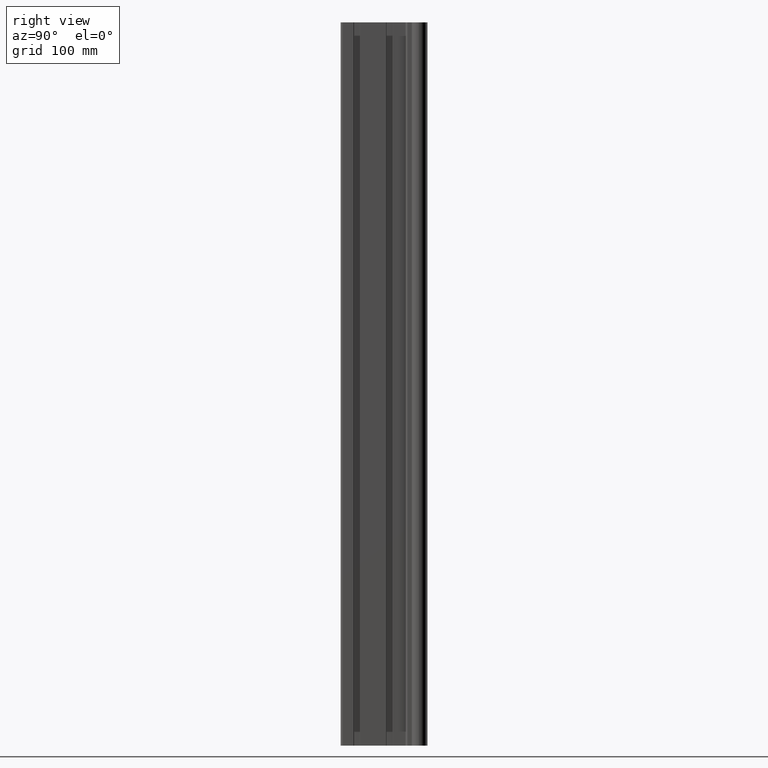
[diagram: clean part render]
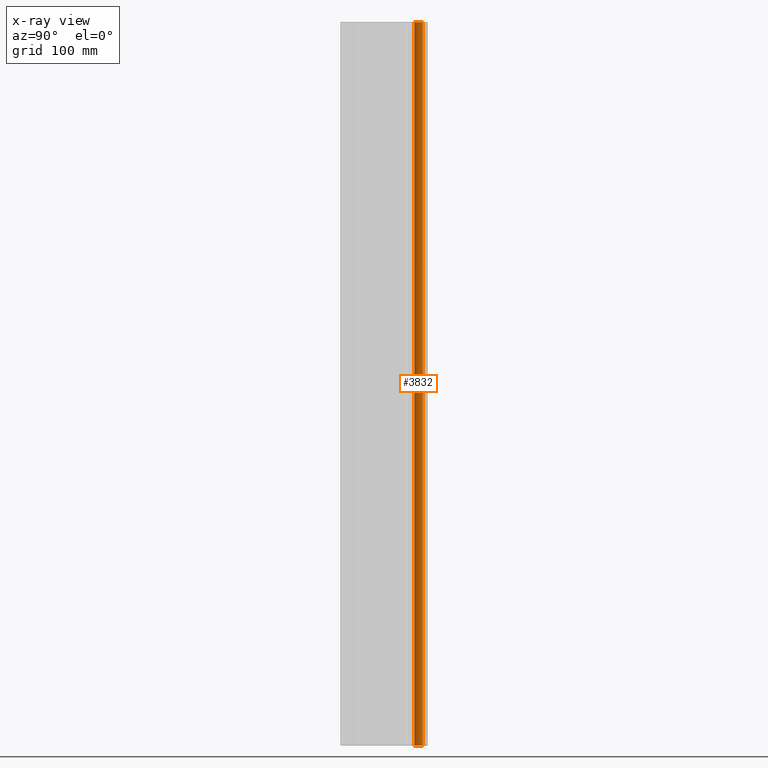
[diagram: x-ray — body ghosted, one internal face saturated and labeled with its STEP entity id]
A machine part, right view, then the same camera in x-ray: the body is ghosted and one INTERNAL B-rep face — a face not visible from any outside direction — is saturated and labeled: STEP entity #3832.
In plain terms, the highlighted cylindrical surface (edge-blend (fillet) strip) has radius 10.575 mm, axis along (0, 0, 1).
Its self-contained STEP definition (entity closure, byte-faithful):
#278=FACE_OUTER_BOUND('',#479,.T.);
#479=EDGE_LOOP('',(#3230,#3231,#3232,#3233));
#642=CIRCLE('',#4098,10.5750000001188);
#736=CIRCLE('',#4309,10.5750000001188);
#1054=LINE('',#6612,#1393);
#1055=LINE('',#6616,#1394);
#1393=VECTOR('',#5418,10.);
#1394=VECTOR('',#5423,10.);
#1642=VERTEX_POINT('',#6084);
#1643=VERTEX_POINT('',#6086);
#1789=VERTEX_POINT('',#6610);
#1790=VERTEX_POINT('',#6614);
#2070=EDGE_CURVE('',#1642,#1643,#642,.T.);
#2333=EDGE_CURVE('',#1789,#1642,#1054,.T.);
#2334=EDGE_CURVE('',#1790,#1789,#736,.T.);
#2335=EDGE_CURVE('',#1790,#1643,#1055,.T.);
#3230=ORIENTED_EDGE('',*,*,#2333,.F.);
#3231=ORIENTED_EDGE('',*,*,#2334,.F.);
#3232=ORIENTED_EDGE('',*,*,#2335,.T.);
#3233=ORIENTED_EDGE('',*,*,#2070,.F.);
#3651=CYLINDRICAL_SURFACE('',#4308,10.5750000001188);
#3832=ADVANCED_FACE('',(#278),#3651,.F.);
#4098=AXIS2_PLACEMENT_3D('',#6087,#4829,#4830);
#4308=AXIS2_PLACEMENT_3D('',#6613,#5419,#5420);
#4309=AXIS2_PLACEMENT_3D('',#6615,#5421,#5422);
#4829=DIRECTION('center_axis',(0.,0.,1.));
#4830=DIRECTION('ref_axis',(-0.83510217918491,0.550094855748184,0.));
#5418=DIRECTION('',(0.,0.,-1.));
#5419=DIRECTION('center_axis',(0.,0.,1.));
#5420=DIRECTION('ref_axis',(-0.83510217918491,0.550094855748184,0.));
#5421=DIRECTION('center_axis',(0.,0.,-1.));
#5422=DIRECTION('ref_axis',(-0.83510217918491,0.550094855748184,0.));
#5423=DIRECTION('',(0.,0.,-1.));
#6084=CARTESIAN_POINT('',(26.1687976506093,113.817253216718,-500.));
#6086=CARTESIAN_POINT('',(26.1687976950341,102.182746950072,-500.));
#6087=CARTESIAN_POINT('Origin',(35.0000031955889,108.000000117116,-500.));
#6610=CARTESIAN_POINT('',(26.1687976506093,113.817253216718,500.));
#6612=CARTESIAN_POINT('',(26.1687976506093,113.817253216718,0.));
#6613=CARTESIAN_POINT('Origin',(35.0000031955889,108.000000117116,0.));
#6614=CARTESIAN_POINT('',(26.1687976950341,102.182746950072,500.));
#6615=CARTESIAN_POINT('Origin',(35.0000031955889,108.000000117116,500.));
#6616=CARTESIAN_POINT('',(26.1687976950341,102.182746950072,0.));